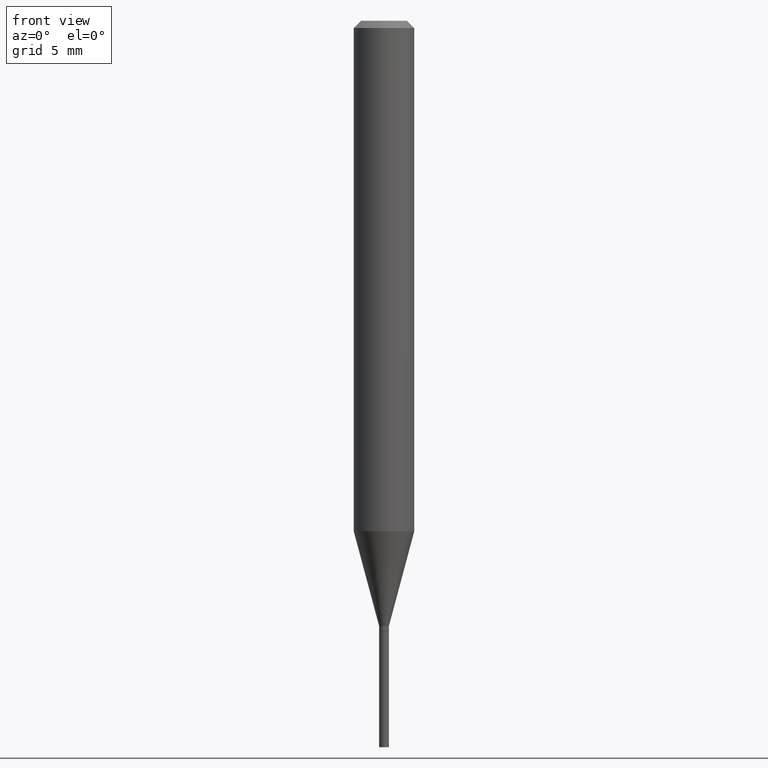
[diagram: clean part render]
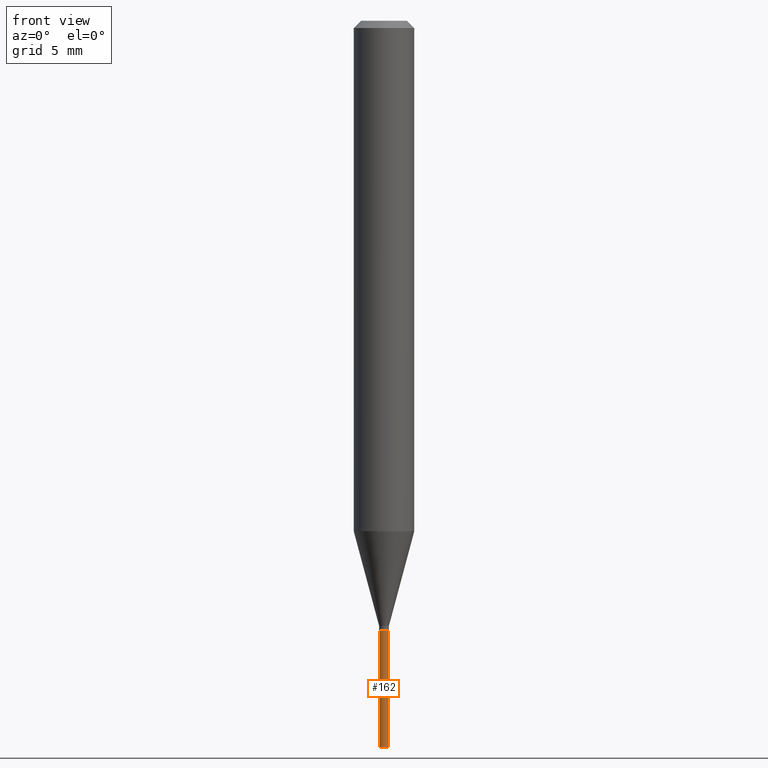
[diagram: same view with one face highlighted and labeled with its STEP entity id]
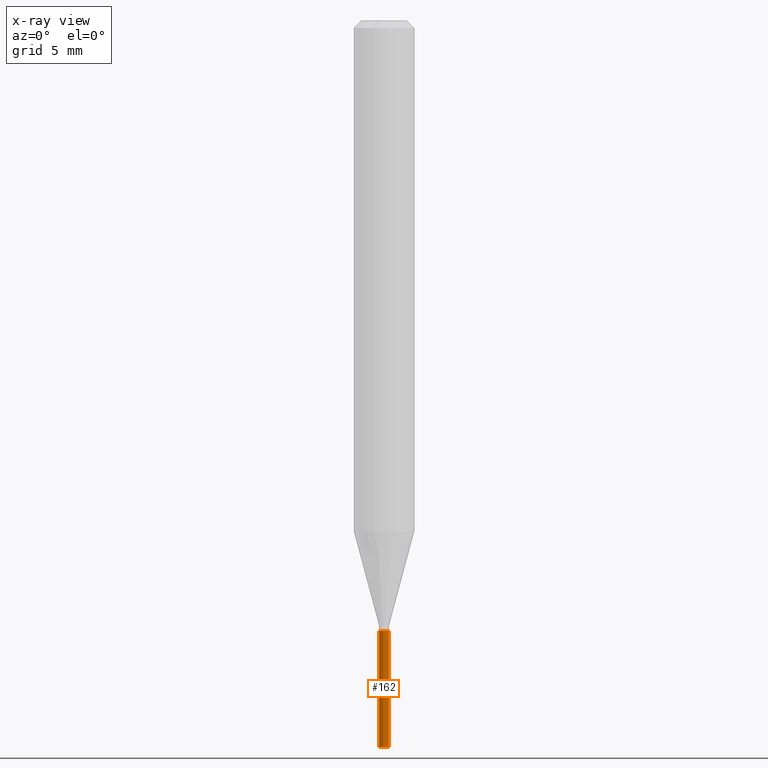
[diagram: x-ray of the same camera — body ghosted, the highlighted face saturated]
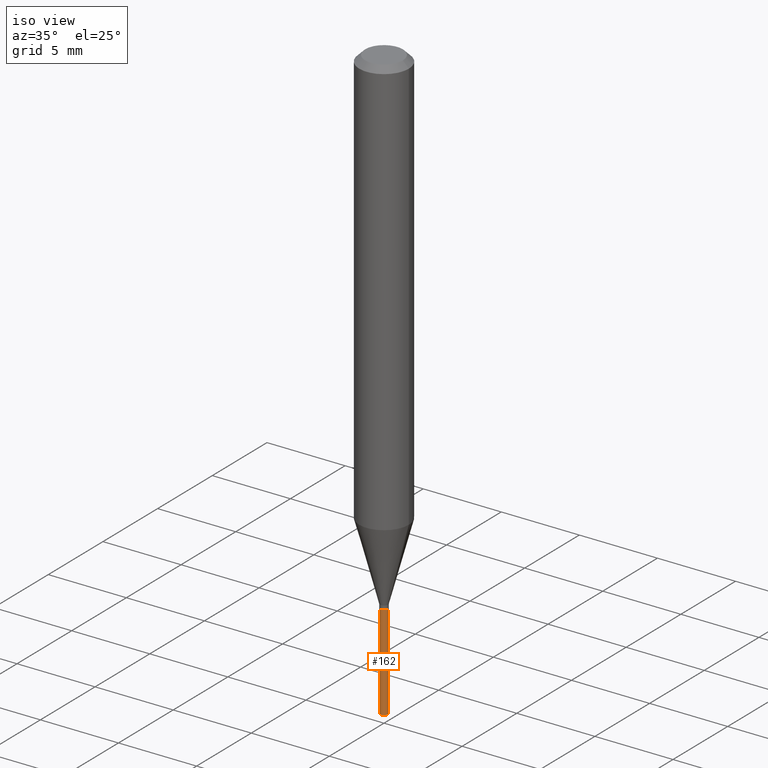
[diagram: same view with one face highlighted and labeled with its STEP entity id]
A machine part, front view. The second image highlights one B-rep face of the part: STEP entity #162.
The next image is the same camera in x-ray: the body ghosted, the highlighted face saturated — about 0% of this face is hidden behind the body in this view.
A second angle (iso view) of the same face is appended — the face is thin or edge-on in the first view.
In plain terms, the highlighted cylindrical surface (edge-blend (fillet) strip) has radius 0.254 mm, axis along (-0, 0, 1).
Its self-contained STEP definition (entity closure, byte-faithful):
#33 = CARTESIAN_POINT ( 'NONE',  ( -0.01000000000000000021, -4.747189974027531461E-15, -1.500000000000000222 ) ) ;
#39 = VECTOR ( 'NONE', #320, 39.37007874015748143 ) ;
#40 = EDGE_CURVE ( 'NONE', #156, #258, #128, .T. ) ;
#45 = DIRECTION ( 'NONE',  ( -2.445468806185136597E-29, 3.491481338843145583E-15, 1.000000000000000000 ) ) ;
#64 = CIRCLE ( 'NONE', #428, 0.01000000000000000021 ) ;
#69 = CIRCLE ( 'NONE', #101, 0.01000000000000000021 ) ;
#101 = AXIS2_PLACEMENT_3D ( 'NONE', #330, #174, #323 ) ;
#110 = DIRECTION ( 'NONE',  ( 1.000000000000000000, -6.982962677686235945E-15, 0.000000000000000000 ) ) ;
#113 = ORIENTED_EDGE ( 'NONE', *, *, #382, .F. ) ;
#128 = LINE ( 'NONE', #390, #212 ) ;
#145 = EDGE_CURVE ( 'NONE', #206, #156, #69, .T. ) ;
#150 = CARTESIAN_POINT ( 'NONE',  ( 0.000000000000000000, 0.000000000000000000, 0.000000000000000000 ) ) ;
#156 = VERTEX_POINT ( 'NONE', #248 ) ;
#162 = ADVANCED_FACE ( 'NONE', ( #384 ), #456, .T. ) ;
#164 = CARTESIAN_POINT ( 'NONE',  ( 3.081290695793272291E-29, -4.399266486942364120E-15, -1.260000000000000231 ) ) ;
#174 = DIRECTION ( 'NONE',  ( -2.445468806185136597E-29, 3.491481338843145583E-15, 1.000000000000000000 ) ) ;
#206 = VERTEX_POINT ( 'NONE', #33 ) ;
#211 = CARTESIAN_POINT ( 'NONE',  ( -0.01000000000000000021, 7.105427357601002007E-17, -4.918935090254906272E-31 ) ) ;
#212 = VECTOR ( 'NONE', #219, 39.37007874015748143 ) ;
#219 = DIRECTION ( 'NONE',  ( -2.445468806185136877E-29, 3.491481338843145188E-15, 1.000000000000000000 ) ) ;
#248 = CARTESIAN_POINT ( 'NONE',  ( 0.01000000000000000021, -5.307051635041580686E-15, -1.500000000000000222 ) ) ;
#254 = CARTESIAN_POINT ( 'NONE',  ( -0.01000000000000000021, -4.747189974027531461E-15, -1.260000000000000231 ) ) ;
#258 = VERTEX_POINT ( 'NONE', #400 ) ;
#272 = ORIENTED_EDGE ( 'NONE', *, *, #145, .T. ) ;
#286 = LINE ( 'NONE', #211, #39 ) ;
#320 = DIRECTION ( 'NONE',  ( -2.445468806185136877E-29, 3.491481338843145188E-15, 1.000000000000000000 ) ) ;
#323 = DIRECTION ( 'NONE',  ( 1.000000000000000000, -6.982962677686235945E-15, 0.000000000000000000 ) ) ;
#329 = AXIS2_PLACEMENT_3D ( 'NONE', #150, #380, #411 ) ;
#330 = CARTESIAN_POINT ( 'NONE',  ( 3.668203209277704895E-29, -5.237222008264718177E-15, -1.500000000000000222 ) ) ;
#349 = ORIENTED_EDGE ( 'NONE', *, *, #40, .T. ) ;
#350 = EDGE_CURVE ( 'NONE', #206, #461, #286, .T. ) ;
#378 = EDGE_LOOP ( 'NONE', ( #434, #272, #349, #113 ) ) ;
#380 = DIRECTION ( 'NONE',  ( -2.445468806185136597E-29, 3.491481338843145583E-15, 1.000000000000000000 ) ) ;
#382 = EDGE_CURVE ( 'NONE', #461, #258, #64, .T. ) ;
#384 = FACE_OUTER_BOUND ( 'NONE', #378, .T. ) ;
#390 = CARTESIAN_POINT ( 'NONE',  ( 0.01000000000000000021, -6.982962677686265724E-17, 4.876176775795935968E-31 ) ) ;
#400 = CARTESIAN_POINT ( 'NONE',  ( 0.01000000000000000021, -4.469096113719226630E-15, -1.260000000000000231 ) ) ;
#411 = DIRECTION ( 'NONE',  ( 1.000000000000000000, -6.982962677686265922E-15, 4.876176775795935793E-29 ) ) ;
#428 = AXIS2_PLACEMENT_3D ( 'NONE', #164, #45, #110 ) ;
#434 = ORIENTED_EDGE ( 'NONE', *, *, #350, .F. ) ;
#456 = CYLINDRICAL_SURFACE ( 'NONE', #329, 0.01000000000000000021 ) ;
#461 = VERTEX_POINT ( 'NONE', #254 ) ;